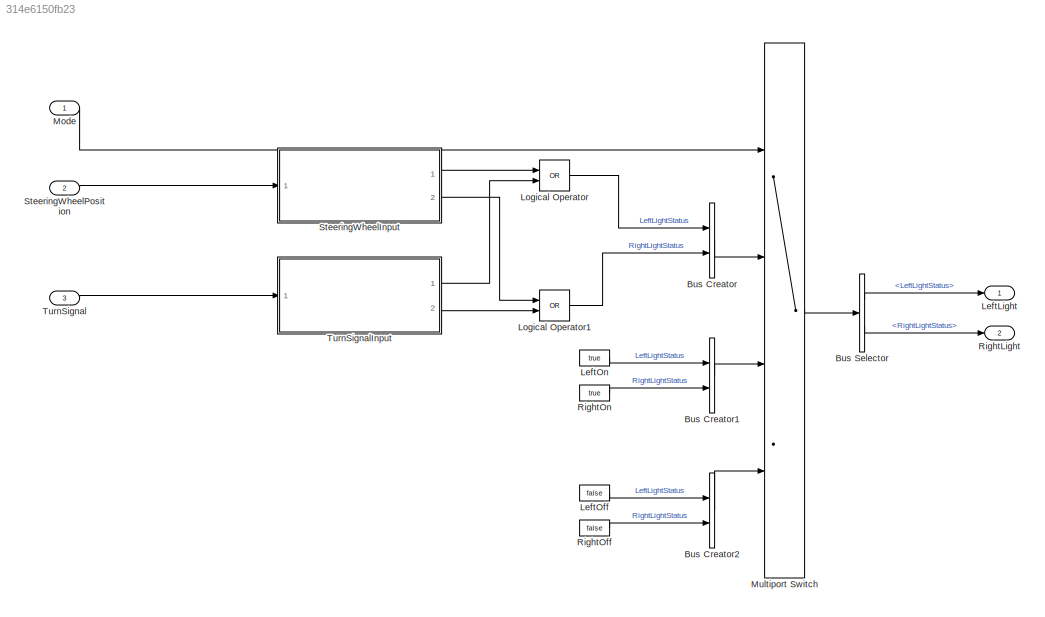
MODEL slx_314e6150fb23
KIND model
BLOCK [BusCreator] Bus Creator
  DisplayOption = bar
  InheritFromInputs = on
  Inputs = 2
  Ports = [2, 1]
BLOCK [BusCreator] Bus Creator1
  DisplayOption = bar
  InheritFromInputs = on
  Inputs = 2
  Ports = [2, 1]
BLOCK [BusCreator] Bus Creator2
  DisplayOption = bar
  InheritFromInputs = on
  Inputs = 2
  Ports = [2, 1]
BLOCK [BusSelector] Bus Selector
  OutputAsBus = off
  OutputSignals = LeftLightStatus,RightLightStatus
  Ports = [1, 2]
BLOCK [Outport] LeftLight
  IconDisplay = Port number
BLOCK [Constant] LeftOff
  OutDataTypeStr = boolean
  Value = false
BLOCK [Constant] LeftOn
  OutDataTypeStr = boolean
  Value = true
BLOCK [Logic] Logical Operator
  AllPortsSameDT = off
  Operator = OR
  OutDataTypeStr = boolean
  Ports = [2, 1]
BLOCK [Logic] Logical Operator1
  AllPortsSameDT = off
  Operator = OR
  OutDataTypeStr = boolean
  Ports = [2, 1]
BLOCK [Inport] Mode
  IconDisplay = Port number
  OutDataTypeStr = Enum: en_Mode
  VarSizeSig = No
BLOCK [MultiPortSwitch] Multiport Switch
  DataPortIndices = {en_Mode.Auto, en_Mode.On, en_Mode.Off}
  DataPortOrder = Specify indices
  DiagnosticForDefault = None
  InputSameDT = off
  Ports = [4, 1]
BLOCK [Outport] RightLight
  IconDisplay = Port number
  Port = 2
BLOCK [Constant] RightOff
  OutDataTypeStr = boolean
  Value = false
BLOCK [Constant] RightOn
  OutDataTypeStr = boolean
  Value = true
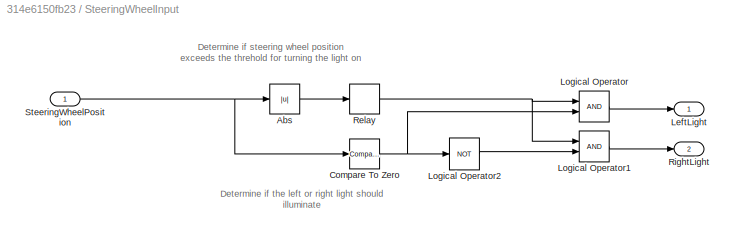
BLOCK [SubSystem] SteeringWheelInput
  Ports = [1, 2]
  RequestExecContextInheritance = off
BLOCK [Abs] SteeringWheelInput/Abs
  OutDataTypeStr = Inherit: Inherit via back propagation
BLOCK [Reference] SteeringWheelInput/Compare To Zero  REF=simulink/Logic and Bit
Operations/Compare
To Zero
  Ports = [1, 1]
  SourceBlock = simulink/Logic and Bit\nOperations/Compare\nTo Zero
  SourceProductBaseCode = SL
  SourceProductName = Simulink
  SourceType = Compare To Zero
BLOCK [Outport] SteeringWheelInput/LeftLight
  IconDisplay = Port number
BLOCK [Logic] SteeringWheelInput/Logical Operator
  AllPortsSameDT = off
  OutDataTypeStr = boolean
  Ports = [2, 1]
BLOCK [Logic] SteeringWheelInput/Logical Operator1
  AllPortsSameDT = off
  OutDataTypeStr = boolean
  Ports = [2, 1]
BLOCK [Logic] SteeringWheelInput/Logical Operator2
  AllPortsSameDT = off
  Operator = NOT
  OutDataTypeStr = boolean
  Ports = [1, 1]
BLOCK [Relay] SteeringWheelInput/Relay
  InputProcessing = Elements as channels (sample based)
  OffSwitchValue = SteeringWheelPositionThresholdOff
  OnSwitchValue = SteeringWheelPositionThresholdOn
  OutDataTypeStr = boolean
BLOCK [Outport] SteeringWheelInput/RightLight
  IconDisplay = Port number
  Port = 2
BLOCK [Inport] SteeringWheelInput/SteeringWheelPosition
  IconDisplay = Port number
BLOCK [Inport] SteeringWheelPosition
  IconDisplay = Port number
  OutDataTypeStr = int16
  Port = 2
  VarSizeSig = No
BLOCK [Inport] TurnSignal
  IconDisplay = Port number
  OutDataTypeStr = Enum: en_TurnSignal
  Port = 3
  VarSizeSig = No
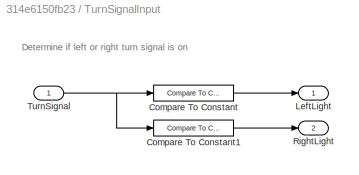
BLOCK [SubSystem] TurnSignalInput
  Ports = [1, 2]
  RequestExecContextInheritance = off
BLOCK [Reference] TurnSignalInput/Compare To Constant  REF=simulink/Logic and Bit
Operations/Compare
To Constant
  Ports = [1, 1]
  SourceBlock = simulink/Logic and Bit\nOperations/Compare\nTo Constant
  SourceProductBaseCode = SL
  SourceProductName = Simulink
  SourceType = Compare To Constant
BLOCK [Reference] TurnSignalInput/Compare To Constant1  REF=simulink/Logic and Bit
Operations/Compare
To Constant
  Ports = [1, 1]
  SourceBlock = simulink/Logic and Bit\nOperations/Compare\nTo Constant
  SourceProductBaseCode = SL
  SourceProductName = Simulink
  SourceType = Compare To Constant
BLOCK [Outport] TurnSignalInput/LeftLight
  IconDisplay = Port number
BLOCK [Outport] TurnSignalInput/RightLight
  IconDisplay = Port number
  Port = 2
BLOCK [Inport] TurnSignalInput/TurnSignal
  IconDisplay = Port number
ANNOTATION SteeringWheelInput: Determine if steering wheel position exceeds the threhold for turning the light on
ANNOTATION SteeringWheelInput: Determine if the left or right light should illuminate
ANNOTATION TurnSignalInput: Determine if left or right turn signal is on
LINE Bus Creator1:1 -> Multiport Switch:3
LINE Bus Creator2:1 -> Multiport Switch:4
LINE Bus Creator:1 -> Multiport Switch:2
LINE Bus Selector:1 -> LeftLight:1
LINE Bus Selector:2 -> RightLight:1
LINE LeftOff:1 -> Bus Creator2:1
LINE LeftOn:1 -> Bus Creator1:1
LINE Logical Operator1:1 -> Bus Creator:2
LINE Logical Operator:1 -> Bus Creator:1
LINE Mode:1 -> Multiport Switch:1
LINE Multiport Switch:1 -> Bus Selector:1
LINE RightOff:1 -> Bus Creator2:2
LINE RightOn:1 -> Bus Creator1:2
LINE SteeringWheelInput/Abs:1 -> SteeringWheelInput/Relay:1
NET SteeringWheelInput/Compare To Zero:1 -> SteeringWheelInput/Logical Operator2:1, SteeringWheelInput/Logical Operator:2
LINE SteeringWheelInput/Logical Operator1:1 -> SteeringWheelInput/RightLight:1
LINE SteeringWheelInput/Logical Operator2:1 -> SteeringWheelInput/Logical Operator1:2
LINE SteeringWheelInput/Logical Operator:1 -> SteeringWheelInput/LeftLight:1
NET SteeringWheelInput/Relay:1 -> SteeringWheelInput/Logical Operator1:1, SteeringWheelInput/Logical Operator:1
NET SteeringWheelInput/SteeringWheelPosition:1 -> SteeringWheelInput/Abs:1, SteeringWheelInput/Compare To Zero:1
LINE SteeringWheelInput:1 -> Logical Operator:1
LINE SteeringWheelInput:2 -> Logical Operator1:1
LINE SteeringWheelPosition:1 -> SteeringWheelInput:1
LINE TurnSignal:1 -> TurnSignalInput:1
LINE TurnSignalInput/Compare To Constant1:1 -> TurnSignalInput/RightLight:1
LINE TurnSignalInput/Compare To Constant:1 -> TurnSignalInput/LeftLight:1
NET TurnSignalInput/TurnSignal:1 -> TurnSignalInput/Compare To Constant1:1, TurnSignalInput/Compare To Constant:1
LINE TurnSignalInput:1 -> Logical Operator:2
LINE TurnSignalInput:2 -> Logical Operator1:2
note: NET lines group one-source signal fan-out (src -> all destinations, sorted); 1:1 wires keep LINE
